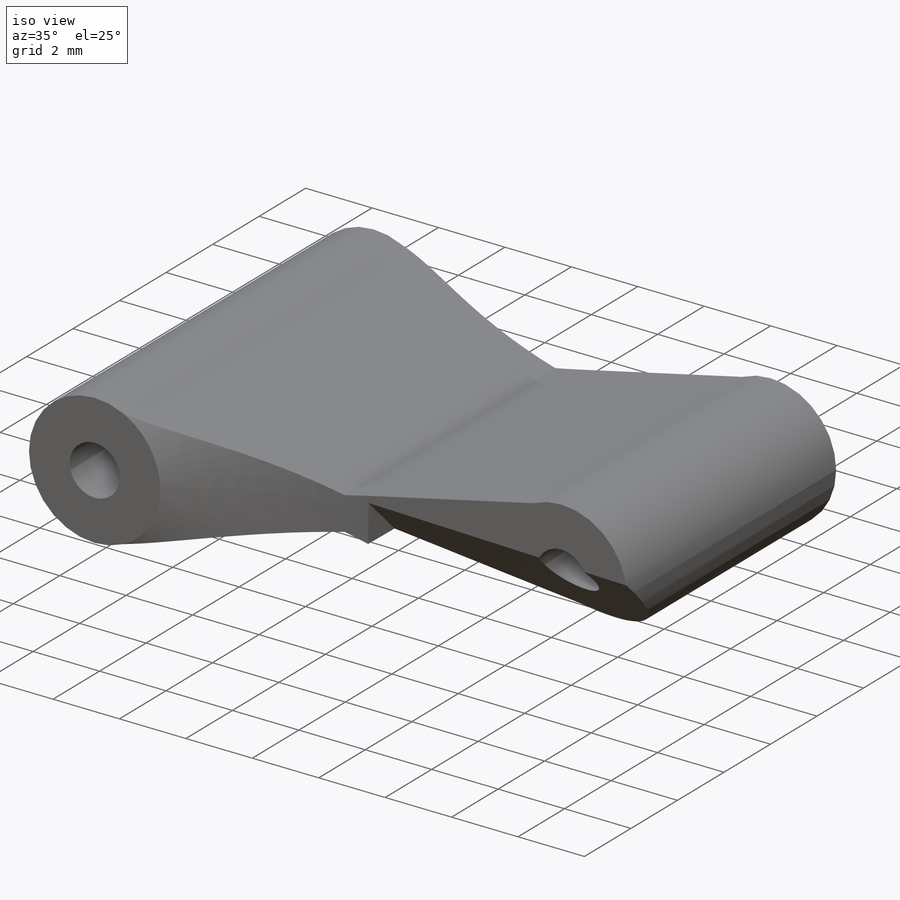
[diagram: iso view]
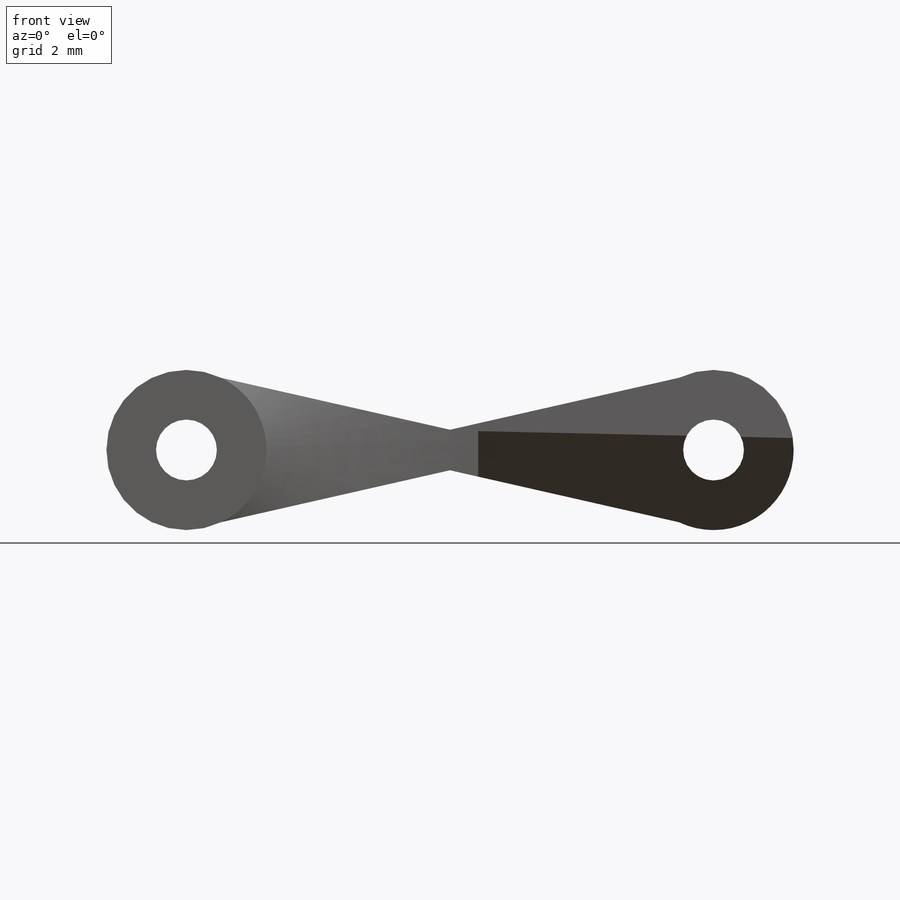
[diagram: front view]
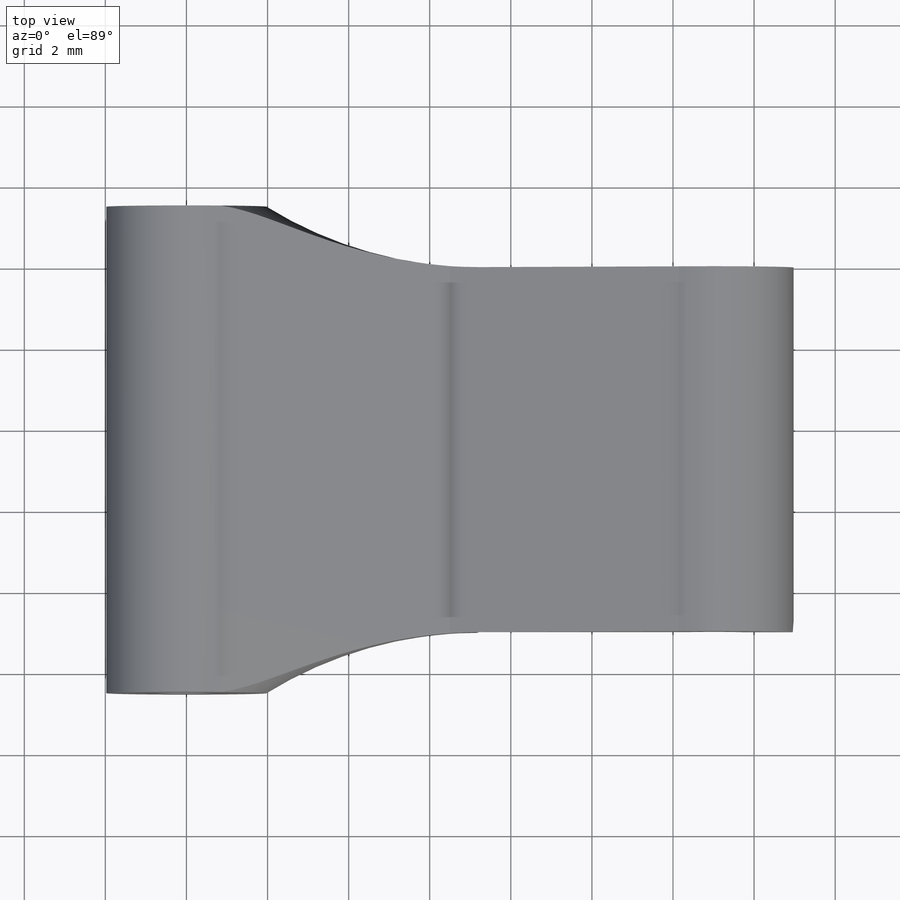
[diagram: top view]
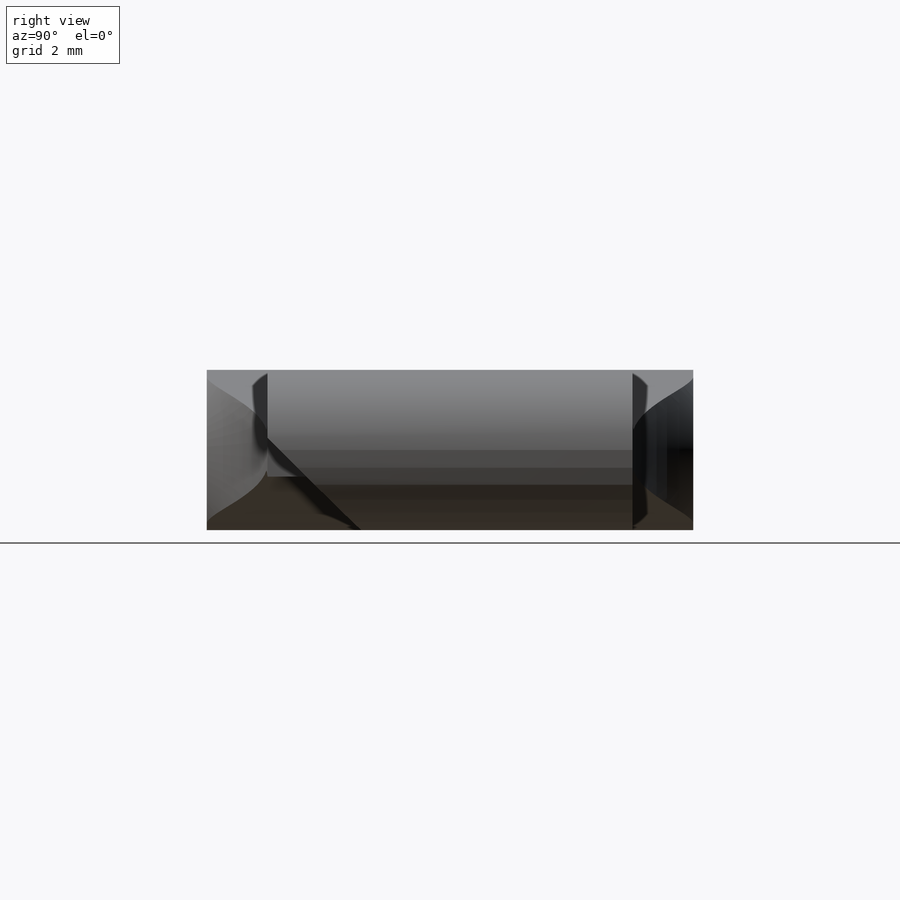
[diagram: right view]
SOLIDWORKS PART (.sldprt)
format: sldprt  version: not decoded by parser v0  size: 213,504 bytes
history: native  units: mm
features: sketch x3, extrude x2, fillet x2, material x1, plane x1, cut_extrude x1 (+13 scaffold rows collapsed)
feature tree (23):
  scaffold x13  (default folders/planes/origin — collapsed)
  material  "Material <not specified>"
  sketch  "Sketch1"  dims[D3=3.95mm D4=1.5mm D1=1.0mm D2=13.0mm]
  extrude  "Boss-Extrude1"  Depth=9mm
  sketch  "Sketch2"
  extrude  "Boss-Extrude2"  Depth=1.5mm
  fillet  "Fillet1"  Radius=10mm
  fillet  "Fillet2"  Radius=10mm
  plane  "Plane1"
  sketch  "Sketch5"
  cut_extrude  "Cut-Extrude1"  Depth=7mm
decode coverage: 6 of 8 modeling features carry decoded parameters
note: suppression state not decoded; provenance and decode notes live in map.json
